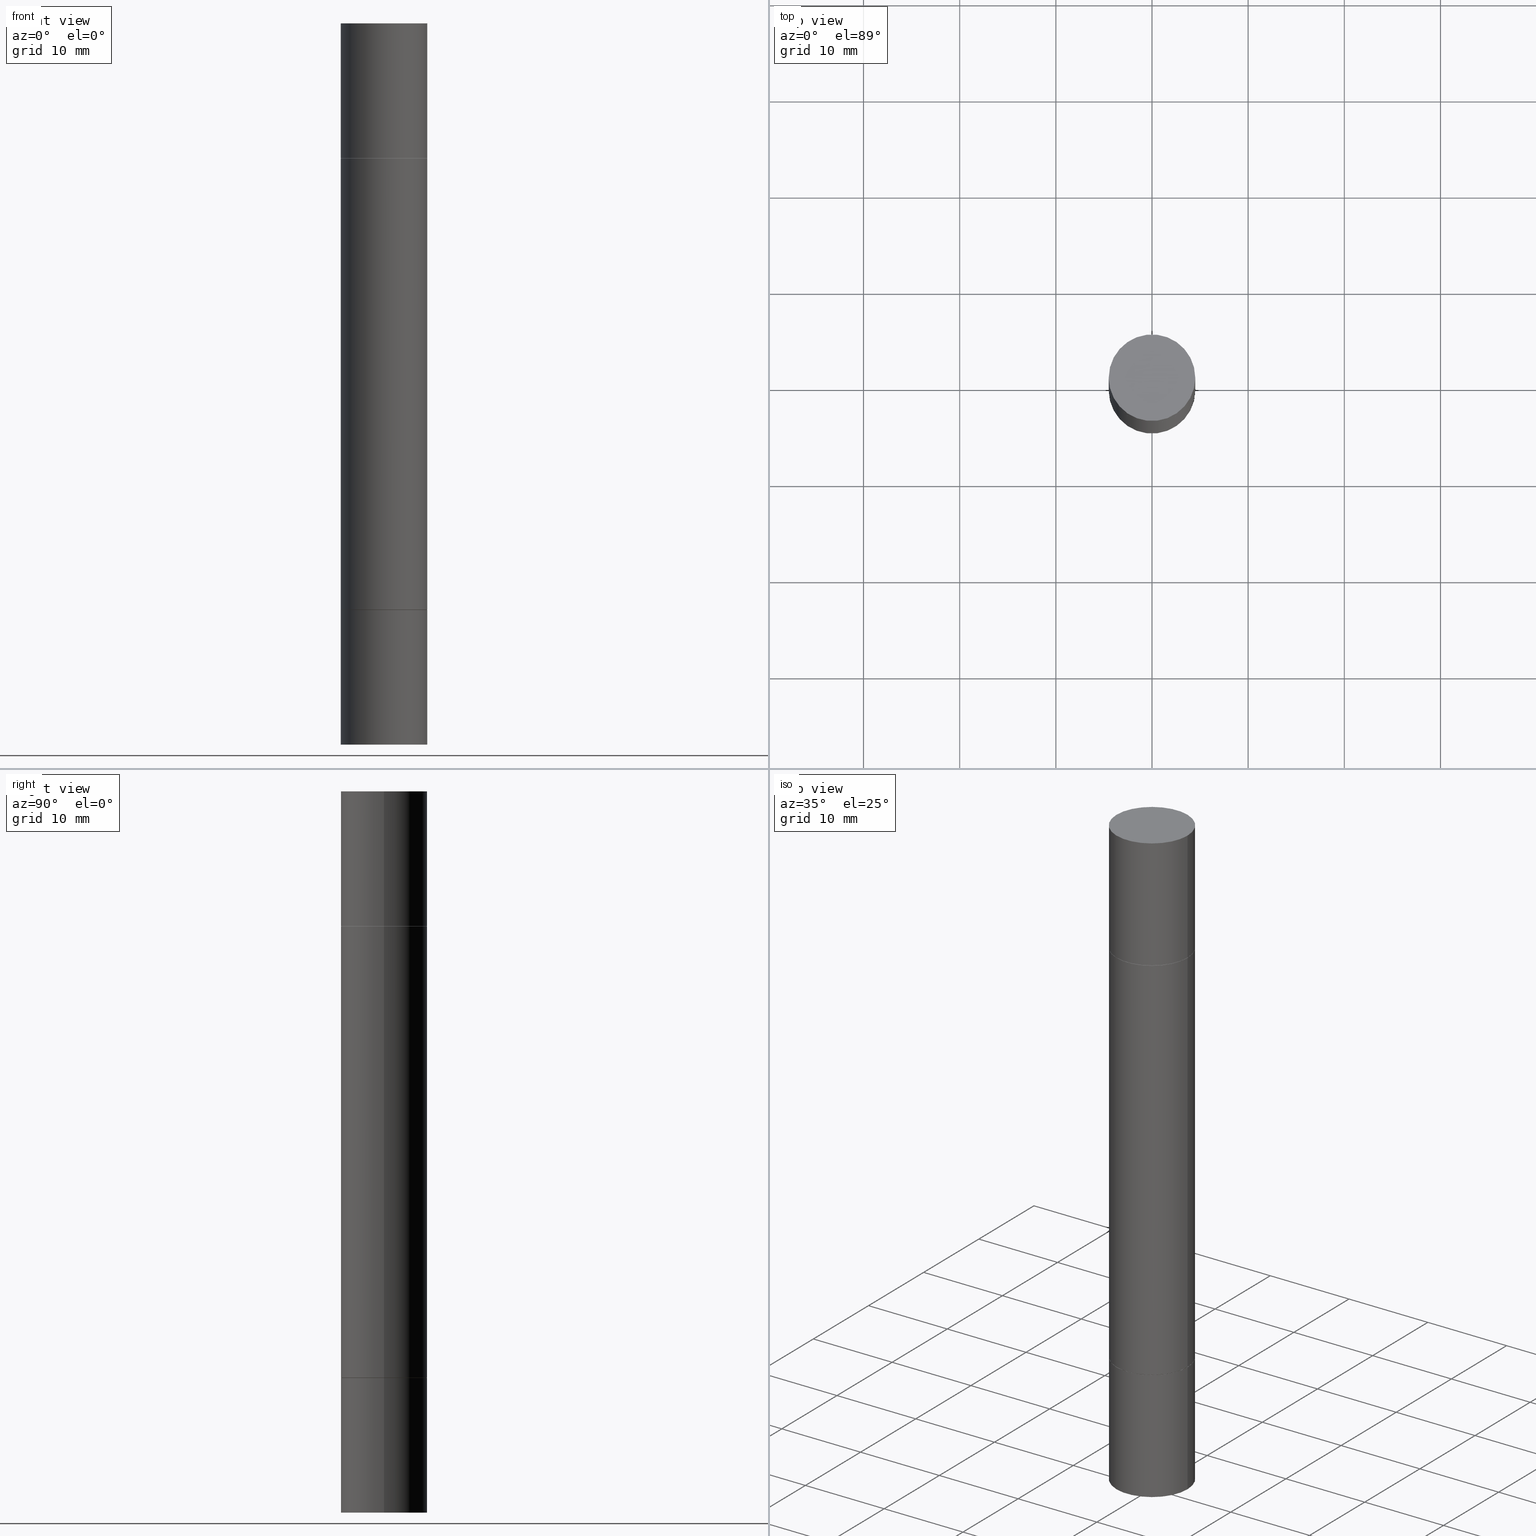
[diagram: canonical four-view strip — front | top / right | iso, engineering-drawing reading convention]
A machine part, canonical four-view strip (front | top / right | iso — engineering-drawing reading convention). The complete STEP part file that produces these views, byte-faithful:
ISO-10303-21;
HEADER;
FILE_DESCRIPTION (( 'STEP AP203' ),
    '1' );
FILE_NAME ('41453.STEP',
    '2024-03-04T15:45:10',
    ( '' ),
    ( '' ),
    'SwSTEP 2.0',
    'SolidWorks 2023',
    '' );
FILE_SCHEMA (( 'CONFIG_CONTROL_DESIGN' ));
ENDSEC;

DATA;
#1 = AXIS2_PLACEMENT_3D ( 'NONE', #207, #625, #54 ) ;
#2 = VECTOR ( 'NONE', #663, 39.37007874015748143 ) ;
#3 = CARTESIAN_POINT ( 'NONE',  ( 0.1771500000000000019, -3.163725568664010262E-15, -0.5521999999999996911 ) ) ;
#4 = ADVANCED_FACE ( 'NONE', ( #670 ), #9, .T. ) ;
#5 = PERSON_AND_ORGANIZATION ( #529, #51 ) ;
#6 = CARTESIAN_POINT ( 'NONE',  ( 0.1761500000000000010, -3.153249715574770922E-15, -0.5511999999999992461 ) ) ;
#7 = ORIENTED_EDGE ( 'NONE', *, *, #71, .F. ) ;
#8 = EDGE_CURVE ( 'NONE', #444, #341, #531, .T. ) ;
#9 = CONICAL_SURFACE ( 'NONE', #238, 0.1761500000000000010, 0.7853981633972775267 ) ;
#10 = ADVANCED_FACE ( 'NONE', ( #609 ), #214, .T. ) ;
#11 = CARTESIAN_POINT ( 'NONE',  ( -0.1771499999999998909, -2.325421169184726863E-15, -1.476399999999999491 ) ) ;
#12 = DIRECTION ( 'NONE',  ( 1.000000000000000000, -6.982962677686266711E-15, 0.000000000000000000 ) ) ;
#13 = ADVANCED_FACE ( 'NONE', ( #556 ), #627, .T. ) ;
#14 = CARTESIAN_POINT ( 'NONE',  ( 1.237031838352180770E-15, 0.1771499999999980590, -0.5512000000000003563 ) ) ;
#15 = EDGE_CURVE ( 'NONE', #341, #444, #582, .T. ) ;
#16 = ADVANCED_FACE ( 'NONE', ( #65 ), #327, .T. ) ;
#17 = AXIS2_PLACEMENT_3D ( 'NONE', #554, #494, #665 ) ;
#18 = DIRECTION ( 'NONE',  ( 1.000000000000000000, -6.982962677686267499E-15, 0.000000000000000000 ) ) ;
#19 = AXIS2_PLACEMENT_3D ( 'NONE', #90, #231, #84 ) ;
#20 = CARTESIAN_POINT ( 'NONE',  ( -0.1761500000000000010, -7.128222099976058179E-15, -2.401599999999999735 ) ) ;
#21 = ORIENTED_EDGE ( 'NONE', *, *, #302, .F. ) ;
#22 = EDGE_CURVE ( 'NONE', #414, #210, #619, .T. ) ;
#23 = APPROVAL_STATUS ( 'not_yet_approved' ) ;
#24 = DIRECTION ( 'NONE',  ( 1.000000000000000000, -6.982962677686267499E-15, 0.000000000000000000 ) ) ;
#25 = VERTEX_POINT ( 'NONE', #266 ) ;
#26 = DIRECTION ( 'NONE',  ( 0.7071067811864267805, -7.407546758113824138E-15, -0.7071067811866682540 ) ) ;
#27 = ORIENTED_EDGE ( 'NONE', *, *, #568, .T. ) ;
#28 = DIRECTION ( 'NONE',  ( 0.000000000000000000, 0.000000000000000000, 1.000000000000000000 ) ) ;
#29 = CYLINDRICAL_SURFACE ( 'NONE', #38, 0.1771499999999998909 ) ;
#30 = ORIENTED_EDGE ( 'NONE', *, *, #590, .T. ) ;
#31 = DIRECTION ( 'NONE',  ( 1.000000000000000000, -6.982962677686272233E-15, 0.000000000000000000 ) ) ;
#32 = VERTEX_POINT ( 'NONE', #11 ) ;
#33 = CARTESIAN_POINT ( 'NONE',  ( 0.000000000000000000, 0.000000000000000000, 0.000000000000000000 ) ) ;
#34 = LINE ( 'NONE', #42, #188 ) ;
#35 = EDGE_LOOP ( 'NONE', ( #251, #83, #352, #333 ) ) ;
#36 = DIRECTION ( 'NONE',  ( -2.445468806185136597E-29, 3.491481338843145583E-15, 1.000000000000000000 ) ) ;
#37 = ORIENTED_EDGE ( 'NONE', *, *, #590, .F. ) ;
#38 = AXIS2_PLACEMENT_3D ( 'NONE', #179, #94, #443 ) ;
#39 = AXIS2_PLACEMENT_3D ( 'NONE', #61, #118, #218 ) ;
#40 = SECURITY_CLASSIFICATION ( '', '', #429 ) ;
#41 = PERSON_AND_ORGANIZATION ( #529, #51 ) ;
#42 = CARTESIAN_POINT ( 'NONE',  ( -0.1761500000000000010, -7.133520554324280581E-15, -2.401599999999999735 ) ) ;
#43 = FACE_OUTER_BOUND ( 'NONE', #676, .T. ) ;
#44 = ORIENTED_EDGE ( 'NONE', *, *, #424, .F. ) ;
#45 = PERSON_AND_ORGANIZATION ( #529, #51 ) ;
#46 = DIRECTION ( 'NONE',  ( 1.000000000000000000, -6.982962677686265922E-15, 0.000000000000000000 ) ) ;
#47 = VERTEX_POINT ( 'NONE', #639 ) ;
#48 = DIRECTION ( 'NONE',  ( -2.445468806185136877E-29, -3.492890411551753071E-15, -1.000000000000000000 ) ) ;
#49 = AXIS2_PLACEMENT_3D ( 'NONE', #217, #211, #161 ) ;
#50 = CC_DESIGN_PERSON_AND_ORGANIZATION_ASSIGNMENT ( #304, #633, ( #264 ) ) ;
#51 = ORGANIZATION ( 'UNSPECIFIED', 'UNSPECIFIED', '' ) ;
#52 = ADVANCED_FACE ( 'NONE', ( #68 ), #537, .F. ) ;
#53 = ORIENTED_EDGE ( 'NONE', *, *, #358, .T. ) ;
#54 = DIRECTION ( 'NONE',  ( 1.000000000000000000, -6.982962677686266711E-15, 0.000000000000000000 ) ) ;
#55 = ORIENTED_EDGE ( 'NONE', *, *, #577, .F. ) ;
#56 = CYLINDRICAL_SURFACE ( 'NONE', #60, 0.1771499999999998909 ) ;
#57 = DIRECTION ( 'NONE',  ( 1.000000000000000000, -6.982962677686266711E-15, 0.000000000000000000 ) ) ;
#58 = EDGE_CURVE ( 'NONE', #191, #506, #203, .T. ) ;
#59 = CIRCLE ( 'NONE', #1, 0.1771500000000000019 ) ;
#60 = AXIS2_PLACEMENT_3D ( 'NONE', #310, #356, #46 ) ;
#61 = CARTESIAN_POINT ( 'NONE',  ( 0.000000000000000000, 0.000000000000000000, 0.000000000000000000 ) ) ;
#62 = ORIENTED_EDGE ( 'NONE', *, *, #269, .T. ) ;
#63 = ADVANCED_FACE ( 'NONE', ( #324 ), #70, .T. ) ;
#64 = EDGE_CURVE ( 'NONE', #506, #32, #652, .T. ) ;
#65 = FACE_OUTER_BOUND ( 'NONE', #193, .T. ) ;
#66 = EDGE_LOOP ( 'NONE', ( #518, #379 ) ) ;
#67 = AXIS2_PLACEMENT_3D ( 'NONE', #594, #423, #171 ) ;
#68 = FACE_OUTER_BOUND ( 'NONE', #541, .T. ) ;
#69 = VERTEX_POINT ( 'NONE', #489 ) ;
#70 = PLANE ( 'NONE',  #373 ) ;
#71 = EDGE_CURVE ( 'NONE', #210, #414, #123, .T. ) ;
#72 = DATE_AND_TIME ( #389, #479 ) ;
#73 = CARTESIAN_POINT ( 'NONE',  ( 5.873037884934223228E-29, -1.923200839900334937E-15, -0.5511999999999992461 ) ) ;
#74 = EDGE_CURVE ( 'NONE', #103, #80, #143, .T. ) ;
#75 = CIRCLE ( 'NONE', #460, 0.1771500000000000019 ) ;
#76 = LINE ( 'NONE', #437, #262 ) ;
#77 = PLANE ( 'NONE',  #635 ) ;
#78 = ORIENTED_EDGE ( 'NONE', *, *, #362, .F. ) ;
#79 = DIRECTION ( 'NONE',  ( 2.445468806185136597E-29, 3.492890411551752677E-15, 1.000000000000000000 ) ) ;
#80 = VERTEX_POINT ( 'NONE', #132 ) ;
#81 = COORDINATED_UNIVERSAL_TIME_OFFSET ( 5, 0, .BEHIND. ) ;
#82 = DIRECTION ( 'NONE',  ( 2.445468806185136597E-29, 3.492890411551752677E-15, 1.000000000000000000 ) ) ;
#83 = ORIENTED_EDGE ( 'NONE', *, *, #112, .T. ) ;
#84 = DIRECTION ( 'NONE',  ( 1.000000000000000000, -6.982962677686266711E-15, 0.000000000000000000 ) ) ;
#85 = ORIENTED_EDGE ( 'NONE', *, *, #376, .T. ) ;
#86 = EDGE_CURVE ( 'NONE', #135, #387, #194, .T. ) ;
#87 = DATE_TIME_ROLE ( 'creation_date' ) ;
#88 = CARTESIAN_POINT ( 'NONE',  ( -0.1771500000000000019, 2.547769778285537851E-16, 5.463695987328559963E-16 ) ) ;
#89 = VERTEX_POINT ( 'NONE', #229 ) ;
#90 = CARTESIAN_POINT ( 'NONE',  ( 5.873037884934223228E-29, -1.923200839900336120E-15, -0.5511999999999995792 ) ) ;
#91 = VERTEX_POINT ( 'NONE', #656 ) ;
#92 = EDGE_CURVE ( 'NONE', #430, #141, #380, .T. ) ;
#93 = PERSON_AND_ORGANIZATION ( #529, #51 ) ;
#94 = DIRECTION ( 'NONE',  ( -2.445468806185136597E-29, -3.492890411551752677E-15, -1.000000000000000000 ) ) ;
#95 = VECTOR ( 'NONE', #48, 39.37007874015748143 ) ;
#96 = DIRECTION ( 'NONE',  ( -2.445468806185136597E-29, -3.492890411551752677E-15, -1.000000000000000000 ) ) ;
#97 = VERTEX_POINT ( 'NONE', #507 ) ;
#98 = CIRCLE ( 'NONE', #468, 0.1771500000000000019 ) ;
#99 = CC_DESIGN_APPROVAL ( #328, ( #264 ) ) ;
#100 = APPROVAL_DATE_TIME ( #560, #328 ) ;
#101 = DIRECTION ( 'NONE',  ( 1.000000000000000000, -6.982962677686267499E-15, 0.000000000000000000 ) ) ;
#102 = DIRECTION ( 'NONE',  ( 1.000000000000000000, -6.982962677686267499E-15, 0.000000000000000000 ) ) ;
#103 = VERTEX_POINT ( 'NONE', #292 ) ;
#104 = FACE_OUTER_BOUND ( 'NONE', #618, .T. ) ;
#105 = ADVANCED_FACE ( 'NONE', ( #340 ), #550, .F. ) ;
#106 = ORIENTED_EDGE ( 'NONE', *, *, #358, .F. ) ;
#107 = CARTESIAN_POINT ( 'NONE',  ( 3.610490145451734531E-29, -5.154823048668018475E-15, -1.476399999999999491 ) ) ;
#108 = CARTESIAN_POINT ( 'NONE',  ( 5.873037884934223228E-29, -8.385141583365697263E-15, -2.401599999999999735 ) ) ;
#109 = AXIS2_PLACEMENT_3D ( 'NONE', #602, #96, #102 ) ;
#110 = ORIENTED_EDGE ( 'NONE', *, *, #64, .F. ) ;
#111 = CARTESIAN_POINT ( 'NONE',  ( 0.1771500000000000019, -1.154875829063514805E-14, -2.952799999999998981 ) ) ;
#112 = EDGE_CURVE ( 'NONE', #97, #341, #390, .T. ) ;
#113 = DIRECTION ( 'NONE',  ( 2.445468806185136597E-29, 3.492890411551752677E-15, 1.000000000000000000 ) ) ;
#114 = FACE_OUTER_BOUND ( 'NONE', #391, .T. ) ;
#115 = DIRECTION ( 'NONE',  ( 2.445468806185136597E-29, 3.492890411551752677E-15, 1.000000000000000000 ) ) ;
#116 = AXIS2_PLACEMENT_3D ( 'NONE', #73, #530, #18 ) ;
#117 = VECTOR ( 'NONE', #26, 39.37007874015748143 ) ;
#118 = DIRECTION ( 'NONE',  ( -2.445468806185136597E-29, 3.491481338843145583E-15, 1.000000000000000000 ) ) ;
#119 = DIRECTION ( 'NONE',  ( -2.445468806185136597E-29, 3.491481338843145583E-15, 1.000000000000000000 ) ) ;
#120 = CC_DESIGN_PERSON_AND_ORGANIZATION_ASSIGNMENT ( #5, #475, ( #40 ) ) ;
#121 = ADVANCED_FACE ( 'NONE', ( #330 ), #246, .T. ) ;
#122 = ORIENTED_EDGE ( 'NONE', *, *, #74, .T. ) ;
#123 = CIRCLE ( 'NONE', #466, 0.1761500000000000010 ) ;
#124 = CIRCLE ( 'NONE', #584, 0.1771500000000000019 ) ;
#125 = DIRECTION ( 'NONE',  ( 1.000000000000000000, -6.982962677686266711E-15, 0.000000000000000000 ) ) ;
#126 = EDGE_CURVE ( 'NONE', #97, #514, #321, .T. ) ;
#127 =( NAMED_UNIT ( * ) PLANE_ANGLE_UNIT ( ) SI_UNIT ( $, .RADIAN. ) );
#128 = CARTESIAN_POINT ( 'NONE',  ( 0.1761500000000000010, -3.153249715574770922E-15, -0.5511999999999992461 ) ) ;
#129 = ORIENTED_EDGE ( 'NONE', *, *, #385, .T. ) ;
#130 = CYLINDRICAL_SURFACE ( 'NONE', #449, 0.1771499999999998909 ) ;
#131 = PERSON_AND_ORGANIZATION ( #529, #51 ) ;
#132 = CARTESIAN_POINT ( 'NONE',  ( -0.1771500000000000019, -8.088667383951849417E-15, -2.401599999999999735 ) ) ;
#133 = AXIS2_PLACEMENT_3D ( 'NONE', #465, #680, #212 ) ;
#134 = ADVANCED_FACE ( 'NONE', ( #435 ), #397, .T. ) ;
#135 = VERTEX_POINT ( 'NONE', #88 ) ;
#136 = CARTESIAN_POINT ( 'NONE',  ( 0.000000000000000000, -1.031172645228302408E-14, -2.952799999999998981 ) ) ;
#137 = EDGE_LOOP ( 'NONE', ( #309, #320, #53, #21 ) ) ;
#138 = CALENDAR_DATE ( 2024, 4, 3 ) ;
#139 = DIRECTION ( 'NONE',  ( 2.445468806185136597E-29, 3.492890411551752677E-15, 1.000000000000000000 ) ) ;
#140 = DIRECTION ( 'NONE',  ( 1.000000000000000000, -6.982962677686266711E-15, 0.000000000000000000 ) ) ;
#141 = VERTEX_POINT ( 'NONE', #128 ) ;
#142 = DIRECTION ( 'NONE',  ( -2.445468806185136597E-29, 3.491481338843145583E-15, 1.000000000000000000 ) ) ;
#143 = LINE ( 'NONE', #596, #291 ) ;
#144 = PLANE ( 'NONE',  #469 ) ;
#145 = DIRECTION ( 'NONE',  ( -2.445468806185136597E-29, 3.491481338843145583E-15, 1.000000000000000000 ) ) ;
#146 = DIRECTION ( 'NONE',  ( 2.445468806185136597E-29, 3.492890411551752677E-15, 1.000000000000000000 ) ) ;
#147 = CIRCLE ( 'NONE', #176, 0.1761500000000000010 ) ;
#148 = DIRECTION ( 'NONE',  ( -1.000000000000000000, 6.982962677686265922E-15, -9.839502134516470631E-33 ) ) ;
#149 = ORIENTED_EDGE ( 'NONE', *, *, #74, .F. ) ;
#150 = CIRCLE ( 'NONE', #426, 0.1771499999999998909 ) ;
#151 = LOCAL_TIME ( 10, 45, 10.00000000000000000, #81 ) ;
#152 = PLANE ( 'NONE',  #306 ) ;
#153 = CARTESIAN_POINT ( 'NONE',  ( 0.1771500000000000019, -9.622173421717819657E-15, -2.401599999999999735 ) ) ;
#154 = ORIENTED_EDGE ( 'NONE', *, *, #269, .F. ) ;
#155 = DIRECTION ( 'NONE',  ( 1.000000000000000000, -6.982962677686267499E-15, 0.000000000000000000 ) ) ;
#156 = DIRECTION ( 'NONE',  ( -1.000000000000000000, 6.982962677686265922E-15, -4.876176775795935793E-29 ) ) ;
#157 = ORIENTED_EDGE ( 'NONE', *, *, #650, .T. ) ;
#158 = DIRECTION ( 'NONE',  ( -0.000000000000000000, -3.492185875197449130E-15, -1.000000000000000000 ) ) ;
#159 = ADVANCED_FACE ( 'NONE', ( #500 ), #29, .T. ) ;
#160 = CLOSED_SHELL ( 'NONE', ( #586, #498, #105, #433, #383, #159 ) ) ;
#161 = DIRECTION ( 'NONE',  ( 1.000000000000000000, -6.982962677686267499E-15, 0.000000000000000000 ) ) ;
#162 = DIRECTION ( 'NONE',  ( 0.7071067811864267805, -7.407546758113824138E-15, -0.7071067811866682540 ) ) ;
#163 = CARTESIAN_POINT ( 'NONE',  ( 0.1771500000000000019, -1.237031838352122197E-15, 8.638147158322499960E-30 ) ) ;
#164 = EDGE_CURVE ( 'NONE', #453, #341, #34, .T. ) ;
#165 = DATE_AND_TIME ( #587, #395 ) ;
#166 = CYLINDRICAL_SURFACE ( 'NONE', #39, 0.1771500000000000019 ) ;
#167 = CARTESIAN_POINT ( 'NONE',  ( 5.870592416128037625E-29, -1.926693730311889446E-15, -0.5521999999999996911 ) ) ;
#168 = CIRCLE ( 'NONE', #253, 0.1771500000000000019 ) ;
#169 = AXIS2_PLACEMENT_3D ( 'NONE', #275, #28, #286 ) ;
#170 = EDGE_CURVE ( 'NONE', #571, #603, #671, .T. ) ;
#171 = DIRECTION ( 'NONE',  ( -1.000000000000000000, 6.982962677686265922E-15, -9.839502134516470631E-33 ) ) ;
#172 = EDGE_LOOP ( 'NONE', ( #451, #122, #664, #37 ) ) ;
#173 = ORIENTED_EDGE ( 'NONE', *, *, #58, .T. ) ;
#174 = ORIENTED_EDGE ( 'NONE', *, *, #302, .T. ) ;
#175 = ADVANCED_FACE ( 'NONE', ( #455 ), #438, .T. ) ;
#176 = AXIS2_PLACEMENT_3D ( 'NONE', #360, #409, #621 ) ;
#177 = AXIS2_PLACEMENT_3D ( 'NONE', #413, #299, #156 ) ;
#178 = VECTOR ( 'NONE', #162, 39.37007874015748143 ) ;
#179 = CARTESIAN_POINT ( 'NONE',  ( 0.000000000000000000, -1.031172645228302408E-14, -2.952799999999998981 ) ) ;
#180 = ORIENTED_EDGE ( 'NONE', *, *, #314, .F. ) ;
#181 = CARTESIAN_POINT ( 'NONE',  ( 0.1771500000000000019, -3.160232678252458120E-15, -0.5511999999999995792 ) ) ;
#182 = ADVANCED_FACE ( 'NONE', ( #538 ), #77, .F. ) ;
#183 = COORDINATED_UNIVERSAL_TIME_OFFSET ( 5, 0, .BEHIND. ) ;
#184 = CARTESIAN_POINT ( 'NONE',  ( -0.1771500000000000019, -9.096389231977797770E-15, -2.952799999999998981 ) ) ;
#185 = ORIENTED_EDGE ( 'NONE', *, *, #15, .F. ) ;
#186 = CARTESIAN_POINT ( 'NONE',  ( 0.000000000000000000, -1.031172645228302408E-14, -2.952799999999998981 ) ) ;
#187 = CARTESIAN_POINT ( 'NONE',  ( 5.870592416128037625E-29, -8.381650102026854256E-15, -2.400599999999999401 ) ) ;
#188 = VECTOR ( 'NONE', #189, 39.37007874015748143 ) ;
#189 = DIRECTION ( 'NONE',  ( -0.7071067811864267805, 7.493145998869918709E-15, 0.7071067811866682540 ) ) ;
#190 = VECTOR ( 'NONE', #388, 39.37007874015748143 ) ;
#191 = VERTEX_POINT ( 'NONE', #3 ) ;
#192 = CARTESIAN_POINT ( 'NONE',  ( 5.873037884934223228E-29, -1.923200839900336120E-15, -0.5511999999999995792 ) ) ;
#193 = EDGE_LOOP ( 'NONE', ( #230, #235 ) ) ;
#194 = LINE ( 'NONE', #184, #487 ) ;
#195 = DIRECTION ( 'NONE',  ( -2.445468806185136877E-29, -3.492890411551753071E-15, -1.000000000000000000 ) ) ;
#196 = ORIENTED_EDGE ( 'NONE', *, *, #344, .T. ) ;
#197 = DIRECTION ( 'NONE',  ( -2.445468806185136877E-29, -3.492890411551753071E-15, -1.000000000000000000 ) ) ;
#198 = DIRECTION ( 'NONE',  ( -2.445468806185136877E-29, -3.492890411551753071E-15, -1.000000000000000000 ) ) ;
#199 = CARTESIAN_POINT ( 'NONE',  ( 0.1771500000000000019, -3.163725568664010262E-15, -0.5521999999999996911 ) ) ;
#200 = ORIENTED_EDGE ( 'NONE', *, *, #474, .F. ) ;
#201 = CC_DESIGN_PERSON_AND_ORGANIZATION_ASSIGNMENT ( #131, #544, ( #381 ) ) ;
#202 = FACE_OUTER_BOUND ( 'NONE', #490, .T. ) ;
#203 = CIRCLE ( 'NONE', #418, 0.1771500000000000019 ) ;
#204 = DIRECTION ( 'NONE',  ( -2.445468806185136597E-29, 3.491481338843145583E-15, 1.000000000000000000 ) ) ;
#205 = AXIS2_PLACEMENT_3D ( 'NONE', #524, #265, #470 ) ;
#206 = EDGE_LOOP ( 'NONE', ( #375, #563, #62, #55 ) ) ;
#207 = CARTESIAN_POINT ( 'NONE',  ( 5.873037884934223228E-29, -1.923200839900336120E-15, -0.5511999999999995792 ) ) ;
#208 = MANIFOLD_SOLID_BREP ( 'Body-Move/Copy2[1]', #447 ) ;
#209 = DIRECTION ( 'NONE',  ( -2.445468806185136877E-29, 3.491481338843145188E-15, 1.000000000000000000 ) ) ;
#210 = VERTEX_POINT ( 'NONE', #564 ) ;
#211 = DIRECTION ( 'NONE',  ( -2.445468806185136597E-29, 3.491481338843145583E-15, 1.000000000000000000 ) ) ;
#212 = DIRECTION ( 'NONE',  ( 1.000000000000000000, -6.982962677686267499E-15, 0.000000000000000000 ) ) ;
#213 = EDGE_CURVE ( 'NONE', #387, #91, #59, .T. ) ;
#214 = CONICAL_SURFACE ( 'NONE', #477, 0.1761500000000000010, 0.7853981633972775267 ) ;
#215 = AXIS2_PLACEMENT_3D ( 'NONE', #406, #436, #148 ) ;
#216 = COORDINATED_UNIVERSAL_TIME_OFFSET ( 5, 0, .BEHIND. ) ;
#217 = CARTESIAN_POINT ( 'NONE',  ( 5.873037884934223228E-29, -8.385141583365697263E-15, -2.401599999999999735 ) ) ;
#218 = DIRECTION ( 'NONE',  ( 1.000000000000000000, -6.982962677686266711E-15, 4.876176775795935793E-29 ) ) ;
#219 = EDGE_CURVE ( 'NONE', #25, #135, #75, .T. ) ;
#220 = ORIENTED_EDGE ( 'NONE', *, *, #378, .T. ) ;
#221 = AXIS2_PLACEMENT_3D ( 'NONE', #107, #260, #305 ) ;
#222 = EDGE_LOOP ( 'NONE', ( #149, #653, #30, #283 ) ) ;
#223 = FACE_OUTER_BOUND ( 'NONE', #222, .T. ) ;
#224 = DIRECTION ( 'NONE',  ( 1.000000000000000000, -6.982962677686266711E-15, 0.000000000000000000 ) ) ;
#225 = AXIS2_PLACEMENT_3D ( 'NONE', #588, #119, #224 ) ;
#226 = VECTOR ( 'NONE', #416, 39.37007874015748143 ) ;
#227 = CARTESIAN_POINT ( 'NONE',  ( -0.1771499999999998909, -9.096389231977797770E-15, -2.952799999999998981 ) ) ;
#228 = DIRECTION ( 'NONE',  ( -2.445468806185136597E-29, -3.492890411551752677E-15, -1.000000000000000000 ) ) ;
#229 = CARTESIAN_POINT ( 'NONE',  ( 0.1761500000000000010, -9.615190459040133643E-15, -2.401599999999999735 ) ) ;
#230 = ORIENTED_EDGE ( 'NONE', *, *, #219, .T. ) ;
#231 = DIRECTION ( 'NONE',  ( 2.445468806185136597E-29, 3.492890411551752677E-15, 1.000000000000000000 ) ) ;
#232 = DIRECTION ( 'NONE',  ( -2.445468806185136597E-29, 3.491481338843145583E-15, 1.000000000000000000 ) ) ;
#233 = CC_DESIGN_DATE_AND_TIME_ASSIGNMENT ( #339, #87, ( #381 ) ) ;
#234 = DIRECTION ( 'NONE',  ( -2.445468806185136877E-29, -3.492890411551753071E-15, -1.000000000000000000 ) ) ;
#235 = ORIENTED_EDGE ( 'NONE', *, *, #424, .T. ) ;
#236 = LINE ( 'NONE', #649, #117 ) ;
#237 = EDGE_LOOP ( 'NONE', ( #539, #343, #659, #288 ) ) ;
#238 = AXIS2_PLACEMENT_3D ( 'NONE', #400, #204, #410 ) ;
#239 = CARTESIAN_POINT ( 'NONE',  ( 7.220980290903470182E-29, 2.080354946989631982E-18, 5.463695987328526437E-16 ) ) ;
#240 = AXIS2_PLACEMENT_3D ( 'NONE', #623, #421, #155 ) ;
#241 = ORIENTED_EDGE ( 'NONE', *, *, #22, .T. ) ;
#242 = LOCAL_TIME ( 10, 45, 10.00000000000000000, #520 ) ;
#243 = DIRECTION ( 'NONE',  ( 1.000000000000000000, -6.982962677686272233E-15, 0.000000000000000000 ) ) ;
#244 = ORIENTED_EDGE ( 'NONE', *, *, #632, .F. ) ;
#245 = APPROVAL_ROLE ( '' ) ;
#246 = CYLINDRICAL_SURFACE ( 'NONE', #276, 0.1771499999999998909 ) ;
#247 = CARTESIAN_POINT ( 'NONE',  ( 7.220980290903470182E-29, -1.030964609733603853E-14, -2.952799999999999869 ) ) ;
#248 = EDGE_LOOP ( 'NONE', ( #154, #501, #446, #607 ) ) ;
#249 = EDGE_CURVE ( 'NONE', #603, #571, #98, .T. ) ;
#250 = CARTESIAN_POINT ( 'NONE',  ( 7.220980290903470182E-29, 2.080354946989631982E-18, 5.463695987328526437E-16 ) ) ;
#251 = ORIENTED_EDGE ( 'NONE', *, *, #126, .F. ) ;
#252 = DIRECTION ( 'NONE',  ( -2.438088387897960049E-29, 3.491481338843145188E-15, 1.000000000000000000 ) ) ;
#253 = AXIS2_PLACEMENT_3D ( 'NONE', #674, #113, #678 ) ;
#254 = VECTOR ( 'NONE', #195, 39.37007874015748143 ) ;
#255 = ORIENTED_EDGE ( 'NONE', *, *, #126, .T. ) ;
#256 = DIRECTION ( 'NONE',  ( 1.000000000000000000, -6.982962677686266711E-15, 0.000000000000000000 ) ) ;
#257 = ADVANCED_BREP_SHAPE_REPRESENTATION ( '41453', ( #208, #442, #677, #434, #668, #169 ), #268 ) ;
#258 = EDGE_LOOP ( 'NONE', ( #492, #640, #129, #624 ) ) ;
#259 = FACE_OUTER_BOUND ( 'NONE', #597, .T. ) ;
#260 = DIRECTION ( 'NONE',  ( -0.000000000000000000, -3.492185875197449130E-15, -1.000000000000000000 ) ) ;
#261 = VECTOR ( 'NONE', #234, 39.37007874015748143 ) ;
#262 = VECTOR ( 'NONE', #197, 39.37007874015748143 ) ;
#263 = CC_DESIGN_APPROVAL ( #325, ( #381 ) ) ;
#264 = PRODUCT_DEFINITION_FORMATION_WITH_SPECIFIED_SOURCE ( 'ANY', '', #480, .NOT_KNOWN. ) ;
#265 = DIRECTION ( 'NONE',  ( 2.445468806185136597E-29, 3.492890411551752677E-15, 1.000000000000000000 ) ) ;
#266 = CARTESIAN_POINT ( 'NONE',  ( 0.1771500000000000019, -1.234951483405132701E-15, 5.463695987328526437E-16 ) ) ;
#267 = AXIS2_PLACEMENT_3D ( 'NONE', #187, #232, #613 ) ;
#268 =( GEOMETRIC_REPRESENTATION_CONTEXT ( 3 ) GLOBAL_UNCERTAINTY_ASSIGNED_CONTEXT ( ( #316 ) ) GLOBAL_UNIT_ASSIGNED_CONTEXT ( ( #493, #127, #396 ) ) REPRESENTATION_CONTEXT ( 'NONE', 'WORKASPACE' ) );
#269 = EDGE_CURVE ( 'NONE', #506, #191, #168, .T. ) ;
#270 = APPROVAL_PERSON_ORGANIZATION ( #93, #325, #605 ) ;
#271 = APPROVAL_DATE_TIME ( #641, #549 ) ;
#272 = CARTESIAN_POINT ( 'NONE',  ( 5.870592416128037625E-29, -1.926693730311889446E-15, -0.5521999999999996911 ) ) ;
#273 = COORDINATED_UNIVERSAL_TIME_OFFSET ( 5, 0, .BEHIND. ) ;
#274 = DIRECTION ( 'NONE',  ( 2.438088387897960049E-29, -3.491481338843145188E-15, -1.000000000000000000 ) ) ;
#275 = CARTESIAN_POINT ( 'NONE',  ( 0.000000000000000000, 0.000000000000000000, 0.000000000000000000 ) ) ;
#276 = AXIS2_PLACEMENT_3D ( 'NONE', #386, #335, #345 ) ;
#277 = CARTESIAN_POINT ( 'NONE',  ( 5.873037884934223228E-29, -1.923200839900334937E-15, -0.5511999999999992461 ) ) ;
#278 = ORIENTED_EDGE ( 'NONE', *, *, #213, .F. ) ;
#279 = CARTESIAN_POINT ( 'NONE',  ( 7.220980290903470182E-29, -1.030964609733603853E-14, -2.952799999999999869 ) ) ;
#280 = ORIENTED_EDGE ( 'NONE', *, *, #471, .F. ) ;
#281 = CYLINDRICAL_SURFACE ( 'NONE', #461, 0.1771500000000000019 ) ;
#282 = DIRECTION ( 'NONE',  ( 1.000000000000000000, -6.982962677686266711E-15, 0.000000000000000000 ) ) ;
#283 = ORIENTED_EDGE ( 'NONE', *, *, #420, .F. ) ;
#284 = CARTESIAN_POINT ( 'NONE',  ( -0.1771500000000000019, -9.096389231977797770E-15, -2.952799999999998981 ) ) ;
#285 = ORIENTED_EDGE ( 'NONE', *, *, #71, .T. ) ;
#286 = DIRECTION ( 'NONE',  ( 1.000000000000000000, 0.000000000000000000, 0.000000000000000000 ) ) ;
#287 = DIRECTION ( 'NONE',  ( -2.445468806185136877E-29, 3.491481338843145188E-15, 1.000000000000000000 ) ) ;
#288 = ORIENTED_EDGE ( 'NONE', *, *, #522, .F. ) ;
#289 = CYLINDRICAL_SURFACE ( 'NONE', #322, 0.1771500000000000019 ) ;
#290 = ORIENTED_EDGE ( 'NONE', *, *, #525, .F. ) ;
#291 = VECTOR ( 'NONE', #287, 39.37007874015748143 ) ;
#292 = CARTESIAN_POINT ( 'NONE',  ( -0.1771500000000000019, -8.088667383951849417E-15, -2.952799999999999869 ) ) ;
#293 = EDGE_CURVE ( 'NONE', #453, #89, #334, .T. ) ;
#294 = CONICAL_SURFACE ( 'NONE', #133, 0.1761500000000000010, 0.7853981633972775267 ) ;
#295 = APPROVAL_PERSON_ORGANIZATION ( #482, #549, #312 ) ;
#296 = CARTESIAN_POINT ( 'NONE',  ( 0.000000000000000000, -1.031172645228302408E-14, -2.952799999999998981 ) ) ;
#297 = CARTESIAN_POINT ( 'NONE',  ( 5.873037884934223228E-29, -1.923200839900334937E-15, -0.5511999999999992461 ) ) ;
#298 = DIRECTION ( 'NONE',  ( 2.445468806185136597E-29, 3.492890411551752677E-15, 1.000000000000000000 ) ) ;
#299 = DIRECTION ( 'NONE',  ( 2.438088387897960049E-29, -3.491481338843145188E-15, -1.000000000000000000 ) ) ;
#300 = EDGE_LOOP ( 'NONE', ( #565, #244, #27, #336 ) ) ;
#301 = DIRECTION ( 'NONE',  ( 1.000000000000000000, -6.982962677686266711E-15, 0.000000000000000000 ) ) ;
#302 = EDGE_CURVE ( 'NONE', #571, #459, #363, .T. ) ;
#303 = ORIENTED_EDGE ( 'NONE', *, *, #293, .T. ) ;
#304 = PERSON_AND_ORGANIZATION ( #529, #51 ) ;
#305 = DIRECTION ( 'NONE',  ( 0.000000000000000000, 1.000000000000000000, -3.084220145260248196E-15 ) ) ;
#306 = AXIS2_PLACEMENT_3D ( 'NONE', #353, #252, #417 ) ;
#307 = DIRECTION ( 'NONE',  ( -2.445468806185136597E-29, 3.491481338843145583E-15, 1.000000000000000000 ) ) ;
#308 = AXIS2_PLACEMENT_3D ( 'NONE', #186, #228, #346 ) ;
#309 = ORIENTED_EDGE ( 'NONE', *, *, #249, .F. ) ;
#310 = CARTESIAN_POINT ( 'NONE',  ( 0.000000000000000000, -1.031172645228302408E-14, -2.952799999999998981 ) ) ;
#311 = CARTESIAN_POINT ( 'NONE',  ( -0.1771499999999999742, -3.939485828362789800E-15, -2.400599999999999401 ) ) ;
#312 = APPROVAL_ROLE ( '' ) ;
#313 = CARTESIAN_POINT ( 'NONE',  ( 3.610490145451734531E-29, -5.154823048668018475E-15, -1.476399999999999491 ) ) ;
#314 = EDGE_CURVE ( 'NONE', #89, #453, #147, .T. ) ;
#315 = CIRCLE ( 'NONE', #488, 0.1761500000000000010 ) ;
#316 = UNCERTAINTY_MEASURE_WITH_UNIT (LENGTH_MEASURE( 1.000000000000000082E-05 ), #493, 'distance_accuracy_value', 'NONE');
#317 = ORIENTED_EDGE ( 'NONE', *, *, #86, .F. ) ;
#318 = ORIENTED_EDGE ( 'NONE', *, *, #579, .F. ) ;
#319 = DATE_TIME_ROLE ( 'classification_date' ) ;
#320 = ORIENTED_EDGE ( 'NONE', *, *, #474, .T. ) ;
#321 = CIRCLE ( 'NONE', #448, 0.1771500000000000019 ) ;
#322 = AXIS2_PLACEMENT_3D ( 'NONE', #296, #496, #31 ) ;
#323 = ADVANCED_FACE ( 'NONE', ( #202 ), #152, .F. ) ;
#324 = FACE_OUTER_BOUND ( 'NONE', #532, .T. ) ;
#325 = APPROVAL ( #23, 'UNSPECIFIED' ) ;
#326 = PERSON_AND_ORGANIZATION ( #529, #51 ) ;
#327 = PLANE ( 'NONE',  #67 ) ;
#328 = APPROVAL ( #499, 'UNSPECIFIED' ) ;
#329 = MECHANICAL_CONTEXT ( 'NONE', #576, 'mechanical' ) ;
#330 = FACE_OUTER_BOUND ( 'NONE', #300, .T. ) ;
#331 = ORIENTED_EDGE ( 'NONE', *, *, #420, .T. ) ;
#332 = LINE ( 'NONE', #342, #2 ) ;
#333 = ORIENTED_EDGE ( 'NONE', *, *, #568, .F. ) ;
#334 = CIRCLE ( 'NONE', #49, 0.1761500000000000010 ) ;
#335 = DIRECTION ( 'NONE',  ( -2.445468806185136597E-29, -3.492890411551752677E-15, -1.000000000000000000 ) ) ;
#336 = ORIENTED_EDGE ( 'NONE', *, *, #8, .T. ) ;
#337 = DIRECTION ( 'NONE',  ( -2.445468806185136597E-29, -3.492890411551752677E-15, -1.000000000000000000 ) ) ;
#338 = ORIENTED_EDGE ( 'NONE', *, *, #344, .F. ) ;
#339 = DATE_AND_TIME ( #138, #151 ) ;
#340 = FACE_OUTER_BOUND ( 'NONE', #589, .T. ) ;
#341 = VERTEX_POINT ( 'NONE', #311 ) ;
#342 = CARTESIAN_POINT ( 'NONE',  ( 0.1761500000000000010, -9.615190459040133643E-15, -2.401599999999999735 ) ) ;
#343 = ORIENTED_EDGE ( 'NONE', *, *, #164, .T. ) ;
#344 = EDGE_CURVE ( 'NONE', #25, #91, #411, .T. ) ;
#345 = DIRECTION ( 'NONE',  ( 1.000000000000000000, -6.982962677686265922E-15, 0.000000000000000000 ) ) ;
#346 = DIRECTION ( 'NONE',  ( 1.000000000000000000, -6.982962677686272233E-15, 0.000000000000000000 ) ) ;
#347 = DIRECTION ( 'NONE',  ( 1.000000000000000000, -6.982962677686267499E-15, 0.000000000000000000 ) ) ;
#348 = AXIS2_PLACEMENT_3D ( 'NONE', #616, #350, #647 ) ;
#349 = CIRCLE ( 'NONE', #221, 0.1771499999999998909 ) ;
#350 = DIRECTION ( 'NONE',  ( -2.445468806185136597E-29, -3.492890411551752677E-15, -1.000000000000000000 ) ) ;
#351 = CARTESIAN_POINT ( 'NONE',  ( 5.873037884934223228E-29, -1.923200839900334937E-15, -0.5511999999999992461 ) ) ;
#352 = ORIENTED_EDGE ( 'NONE', *, *, #15, .T. ) ;
#353 = CARTESIAN_POINT ( 'NONE',  ( 5.873037884934223228E-29, -8.385141583365697263E-15, -2.401599999999999735 ) ) ;
#354 = ORIENTED_EDGE ( 'NONE', *, *, #58, .F. ) ;
#355 = PERSON_AND_ORGANIZATION_ROLE ( 'creator' ) ;
#356 = DIRECTION ( 'NONE',  ( -2.445468806185136597E-29, -3.492890411551752677E-15, -1.000000000000000000 ) ) ;
#357 = CARTESIAN_POINT ( 'NONE',  ( -0.1771500000000000019, 2.547769778285537851E-16, 5.463695987328559963E-16 ) ) ;
#358 = EDGE_CURVE ( 'NONE', #47, #459, #431, .T. ) ;
#359 = ORIENTED_EDGE ( 'NONE', *, *, #385, .F. ) ;
#360 = CARTESIAN_POINT ( 'NONE',  ( 5.873037884934223228E-29, -8.385141583365697263E-15, -2.401599999999999735 ) ) ;
#361 = CONICAL_SURFACE ( 'NONE', #240, 0.1761500000000000010, 0.7853981633972775267 ) ;
#362 = EDGE_CURVE ( 'NONE', #32, #398, #150, .T. ) ;
#363 = LINE ( 'NONE', #111, #95 ) ;
#364 = DIMENSIONAL_EXPONENTS ( 1.000000000000000000, 0.000000000000000000, 0.000000000000000000, 0.000000000000000000, 0.000000000000000000, 0.000000000000000000, 0.000000000000000000 ) ;
#365 = ADVANCED_FACE ( 'NONE', ( #104 ), #361, .T. ) ;
#366 = ADVANCED_FACE ( 'NONE', ( #464 ), #56, .T. ) ;
#367 = DESIGN_CONTEXT ( 'detailed design', #512, 'design' ) ;
#368 = CARTESIAN_POINT ( 'NONE',  ( -0.1771500000000000019, 2.547769778285537851E-16, -0.5511999999999995792 ) ) ;
#369 = PLANE ( 'NONE',  #177 ) ;
#370 = CALENDAR_DATE ( 2024, 4, 3 ) ;
#371 = FACE_OUTER_BOUND ( 'NONE', #172, .T. ) ;
#372 = CARTESIAN_POINT ( 'NONE',  ( 1.237031838352194377E-15, 0.1771499999999897046, -2.952800000000000313 ) ) ;
#373 = AXIS2_PLACEMENT_3D ( 'NONE', #372, #274, #402 ) ;
#374 = AXIS2_PLACEMENT_3D ( 'NONE', #279, #36, #243 ) ;
#375 = ORIENTED_EDGE ( 'NONE', *, *, #92, .F. ) ;
#376 = EDGE_CURVE ( 'NONE', #141, #430, #315, .T. ) ;
#377 = ORIENTED_EDGE ( 'NONE', *, *, #376, .F. ) ;
#378 = EDGE_CURVE ( 'NONE', #398, #32, #349, .T. ) ;
#379 = ORIENTED_EDGE ( 'NONE', *, *, #249, .T. ) ;
#380 = CIRCLE ( 'NONE', #394, 0.1761500000000000010 ) ;
#381 = PRODUCT_DEFINITION ( 'UNKNOWN', '', #264, #367 ) ;
#382 = AXIS2_PLACEMENT_3D ( 'NONE', #192, #79, #140 ) ;
#383 = ADVANCED_FACE ( 'NONE', ( #259 ), #294, .T. ) ;
#384 = DIRECTION ( 'NONE',  ( -2.445468806185136597E-29, -3.492890411551752677E-15, -1.000000000000000000 ) ) ;
#385 = EDGE_CURVE ( 'NONE', #414, #514, #629, .T. ) ;
#386 = CARTESIAN_POINT ( 'NONE',  ( 0.000000000000000000, -1.031172645228302408E-14, -2.952799999999998981 ) ) ;
#387 = VERTEX_POINT ( 'NONE', #368 ) ;
#388 = DIRECTION ( 'NONE',  ( -0.7071067811864267805, 2.381258160590016583E-15, -0.7071067811866682540 ) ) ;
#389 = CALENDAR_DATE ( 2024, 4, 3 ) ;
#390 = LINE ( 'NONE', #227, #261 ) ;
#391 = EDGE_LOOP ( 'NONE', ( #546, #331 ) ) ;
#392 = CARTESIAN_POINT ( 'NONE',  ( 0.1771500000000000019, -9.618681940378976650E-15, -2.400599999999999401 ) ) ;
#393 = ORIENTED_EDGE ( 'NONE', *, *, #213, .T. ) ;
#394 = AXIS2_PLACEMENT_3D ( 'NONE', #504, #298, #101 ) ;
#395 = LOCAL_TIME ( 10, 45, 10.00000000000000000, #273 ) ;
#396 =( NAMED_UNIT ( * ) SI_UNIT ( $, .STERADIAN. ) SOLID_ANGLE_UNIT ( ) );
#397 = CYLINDRICAL_SURFACE ( 'NONE', #17, 0.1771500000000000019 ) ;
#398 = VERTEX_POINT ( 'NONE', #580 ) ;
#399 = CARTESIAN_POINT ( 'NONE',  ( -0.1761500000000000010, -7.130403137997704067E-16, -0.5511999999999992461 ) ) ;
#400 = CARTESIAN_POINT ( 'NONE',  ( 5.873037884934223228E-29, -8.385141583365697263E-15, -2.401599999999999735 ) ) ;
#401 = APPLICATION_PROTOCOL_DEFINITION ( 'international standard', 'config_control_design', 1994, #576 ) ;
#402 = DIRECTION ( 'NONE',  ( -1.000000000000000000, 6.982962677686265922E-15, -4.876176775795935793E-29 ) ) ;
#403 = DIRECTION ( 'NONE',  ( 1.000000000000000000, -6.982962677686272233E-15, 0.000000000000000000 ) ) ;
#404 = EDGE_LOOP ( 'NONE', ( #110, #354, #157, #78 ) ) ;
#405 = DIRECTION ( 'NONE',  ( 0.000000000000000000, 3.492185875197449524E-15, 1.000000000000000000 ) ) ;
#406 = CARTESIAN_POINT ( 'NONE',  ( 1.237031838352194377E-15, 0.1771500000000000019, 0.000000000000000000 ) ) ;
#407 = CLOSED_SHELL ( 'NONE', ( #526, #534, #626, #483 ) ) ;
#408 = CIRCLE ( 'NONE', #644, 0.1771500000000000019 ) ;
#409 = DIRECTION ( 'NONE',  ( -2.445468806185136597E-29, 3.491481338843145583E-15, 1.000000000000000000 ) ) ;
#410 = DIRECTION ( 'NONE',  ( 1.000000000000000000, -6.982962677686267499E-15, 0.000000000000000000 ) ) ;
#411 = LINE ( 'NONE', #511, #557 ) ;
#412 = ADVANCED_FACE ( 'NONE', ( #371 ), #166, .T. ) ;
#413 = CARTESIAN_POINT ( 'NONE',  ( 1.237031838352180770E-15, 0.1771499999999916197, -2.401600000000000179 ) ) ;
#414 = VERTEX_POINT ( 'NONE', #6 ) ;
#415 = DIRECTION ( 'NONE',  ( -2.445468806185136877E-29, -3.492890411551753071E-15, -1.000000000000000000 ) ) ;
#416 = DIRECTION ( 'NONE',  ( -0.7071067811864267805, 2.381258160590016583E-15, -0.7071067811866682540 ) ) ;
#417 = DIRECTION ( 'NONE',  ( 1.000000000000000000, -6.982962677686265922E-15, 4.876176775795935793E-29 ) ) ;
#418 = AXIS2_PLACEMENT_3D ( 'NONE', #167, #642, #125 ) ;
#419 = AXIS2_PLACEMENT_3D ( 'NONE', #585, #527, #428 ) ;
#420 = EDGE_CURVE ( 'NONE', #80, #592, #533, .T. ) ;
#421 = DIRECTION ( 'NONE',  ( -2.445468806185136597E-29, -3.492890411551752677E-15, -1.000000000000000000 ) ) ;
#422 = CARTESIAN_POINT ( 'NONE',  ( 5.873037884934223228E-29, -8.385141583365697263E-15, -2.401599999999999735 ) ) ;
#423 = DIRECTION ( 'NONE',  ( 2.438088387897959769E-29, 3.492890411551753071E-15, 1.000000000000000000 ) ) ;
#424 = EDGE_CURVE ( 'NONE', #135, #25, #661, .T. ) ;
#425 = AXIS2_PLACEMENT_3D ( 'NONE', #14, #485, #535 ) ;
#426 = AXIS2_PLACEMENT_3D ( 'NONE', #313, #158, #521 ) ;
#427 = LOCAL_TIME ( 10, 45, 10.00000000000000000, #216 ) ;
#428 = DIRECTION ( 'NONE',  ( -1.000000000000000000, 6.982962677686265922E-15, -9.839502134516470631E-33 ) ) ;
#429 = SECURITY_CLASSIFICATION_LEVEL ( 'unclassified' ) ;
#430 = VERTEX_POINT ( 'NONE', #399 ) ;
#431 = CIRCLE ( 'NONE', #523, 0.1771500000000000019 ) ;
#432 = VECTOR ( 'NONE', #209, 39.37007874015748143 ) ;
#433 = ADVANCED_FACE ( 'NONE', ( #658 ), #144, .F. ) ;
#434 = MANIFOLD_SOLID_BREP ( 'Mirror1[4]', #407 ) ;
#435 = FACE_OUTER_BOUND ( 'NONE', #484, .T. ) ;
#436 = DIRECTION ( 'NONE',  ( 2.438088387897959769E-29, 3.492890411551753071E-15, 1.000000000000000000 ) ) ;
#437 = CARTESIAN_POINT ( 'NONE',  ( 0.1771499999999998909, -1.154875829063514490E-14, -2.952799999999998981 ) ) ;
#438 = CYLINDRICAL_SURFACE ( 'NONE', #348, 0.1771500000000000019 ) ;
#439 = ORIENTED_EDGE ( 'NONE', *, *, #92, .T. ) ;
#440 = FACE_OUTER_BOUND ( 'NONE', #137, .T. ) ;
#441 = EDGE_LOOP ( 'NONE', ( #85, #439 ) ) ;
#442 = MANIFOLD_SOLID_BREP ( 'Mirror1[1]', #160 ) ;
#443 = DIRECTION ( 'NONE',  ( 1.000000000000000000, -6.982962677686265922E-15, 0.000000000000000000 ) ) ;
#444 = VERTEX_POINT ( 'NONE', #392 ) ;
#445 = LINE ( 'NONE', #163, #432 ) ;
#446 = ORIENTED_EDGE ( 'NONE', *, *, #378, .F. ) ;
#447 = CLOSED_SHELL ( 'NONE', ( #412, #63, #601, #643 ) ) ;
#448 = AXIS2_PLACEMENT_3D ( 'NONE', #611, #82, #282 ) ;
#449 = AXIS2_PLACEMENT_3D ( 'NONE', #136, #337, #547 ) ;
#450 = DIRECTION ( 'NONE',  ( 1.000000000000000000, -6.982962677686266711E-15, 0.000000000000000000 ) ) ;
#451 = ORIENTED_EDGE ( 'NONE', *, *, #525, .T. ) ;
#452 = LINE ( 'NONE', #284, #543 ) ;
#453 = VERTEX_POINT ( 'NONE', #20 ) ;
#454 =( LENGTH_UNIT ( ) NAMED_UNIT ( * ) SI_UNIT ( $, .METRE. ) );
#455 = FACE_OUTER_BOUND ( 'NONE', #509, .T. ) ;
#456 = PLANE ( 'NONE',  #215 ) ;
#457 = ORIENTED_EDGE ( 'NONE', *, *, #471, .T. ) ;
#458 = DIRECTION ( 'NONE',  ( 2.445468806185136597E-29, 3.492890411551752677E-15, 1.000000000000000000 ) ) ;
#459 = VERTEX_POINT ( 'NONE', #181 ) ;
#460 = AXIS2_PLACEMENT_3D ( 'NONE', #516, #115, #301 ) ;
#461 = AXIS2_PLACEMENT_3D ( 'NONE', #33, #142, #595 ) ;
#462 = DIRECTION ( 'NONE',  ( 2.445468806185136597E-29, 3.492890411551752677E-15, 1.000000000000000000 ) ) ;
#463 = ORIENTED_EDGE ( 'NONE', *, *, #569, .T. ) ;
#464 = FACE_OUTER_BOUND ( 'NONE', #35, .T. ) ;
#465 = CARTESIAN_POINT ( 'NONE',  ( 5.873037884934223228E-29, -1.923200839900334937E-15, -0.5511999999999992461 ) ) ;
#466 = AXIS2_PLACEMENT_3D ( 'NONE', #606, #139, #24 ) ;
#467 = CARTESIAN_POINT ( 'NONE',  ( 0.1761500000000000010, -3.153249715574770922E-15, -0.5511999999999992461 ) ) ;
#468 = AXIS2_PLACEMENT_3D ( 'NONE', #250, #458, #57 ) ;
#469 = AXIS2_PLACEMENT_3D ( 'NONE', #351, #654, #612 ) ;
#470 = DIRECTION ( 'NONE',  ( 1.000000000000000000, -6.982962677686266711E-15, 0.000000000000000000 ) ) ;
#471 = EDGE_CURVE ( 'NONE', #459, #47, #628, .T. ) ;
#472 = ORIENTED_EDGE ( 'NONE', *, *, #522, .T. ) ;
#473 = CC_DESIGN_PERSON_AND_ORGANIZATION_ASSIGNMENT ( #45, #355, ( #264 ) ) ;
#474 = EDGE_CURVE ( 'NONE', #603, #47, #452, .T. ) ;
#475 = PERSON_AND_ORGANIZATION_ROLE ( 'classification_officer' ) ;
#476 = PRODUCT_RELATED_PRODUCT_CATEGORY ( 'detail', '', ( #480 ) ) ;
#477 = AXIS2_PLACEMENT_3D ( 'NONE', #553, #145, #347 ) ;
#478 = CIRCLE ( 'NONE', #382, 0.1771500000000000019 ) ;
#479 = LOCAL_TIME ( 10, 45, 10.00000000000000000, #183 ) ;
#480 = PRODUCT ( '41453', '41453', '', ( #329 ) ) ;
#481 = DIRECTION ( 'NONE',  ( 2.445468806185136597E-29, 3.492890411551752677E-15, 1.000000000000000000 ) ) ;
#482 = PERSON_AND_ORGANIZATION ( #529, #51 ) ;
#483 = ADVANCED_FACE ( 'NONE', ( #43 ), #608, .T. ) ;
#484 = EDGE_LOOP ( 'NONE', ( #317, #600, #196, #463 ) ) ;
#485 = DIRECTION ( 'NONE',  ( 2.438088387897959769E-29, 3.492890411551753071E-15, 1.000000000000000000 ) ) ;
#486 = LINE ( 'NONE', #491, #254 ) ;
#487 = VECTOR ( 'NONE', #599, 39.37007874015748143 ) ;
#488 = AXIS2_PLACEMENT_3D ( 'NONE', #566, #631, #519 ) ;
#489 = CARTESIAN_POINT ( 'NONE',  ( 0.1771500000000000019, -1.154667793568816250E-14, -2.952799999999999869 ) ) ;
#490 = EDGE_LOOP ( 'NONE', ( #180, #648 ) ) ;
#491 = CARTESIAN_POINT ( 'NONE',  ( 0.1771499999999998909, -1.154875829063514490E-14, -2.952799999999998981 ) ) ;
#492 = ORIENTED_EDGE ( 'NONE', *, *, #614, .F. ) ;
#493 =( CONVERSION_BASED_UNIT ( 'INCH', #536 ) LENGTH_UNIT ( ) NAMED_UNIT ( #364 ) );
#494 = DIRECTION ( 'NONE',  ( -2.445468806185136597E-29, -3.492890411551752677E-15, -1.000000000000000000 ) ) ;
#495 = ORIENTED_EDGE ( 'NONE', *, *, #577, .T. ) ;
#496 = DIRECTION ( 'NONE',  ( -2.445468806185136597E-29, -3.492890411551752677E-15, -1.000000000000000000 ) ) ;
#497 = EDGE_LOOP ( 'NONE', ( #667, #303, #472, #185 ) ) ;
#498 = ADVANCED_FACE ( 'NONE', ( #666 ), #636, .T. ) ;
#499 = APPROVAL_STATUS ( 'not_yet_approved' ) ;
#500 = FACE_OUTER_BOUND ( 'NONE', #404, .T. ) ;
#501 = ORIENTED_EDGE ( 'NONE', *, *, #64, .T. ) ;
#502 = CARTESIAN_POINT ( 'NONE',  ( 0.1771500000000000019, -1.234951483405132701E-15, 5.463695987328526437E-16 ) ) ;
#503 = APPROVAL_DATE_TIME ( #72, #325 ) ;
#504 = CARTESIAN_POINT ( 'NONE',  ( 5.873037884934223228E-29, -1.923200839900334937E-15, -0.5511999999999992461 ) ) ;
#505 = FACE_OUTER_BOUND ( 'NONE', #66, .T. ) ;
#506 = VERTEX_POINT ( 'NONE', #555 ) ;
#507 = CARTESIAN_POINT ( 'NONE',  ( -0.1771500000000000019, -7.113565100066610661E-16, -0.5521999999999996911 ) ) ;
#508 = CARTESIAN_POINT ( 'NONE',  ( -0.1761500000000000010, -7.147241175928796487E-16, -0.5511999999999992461 ) ) ;
#509 = EDGE_LOOP ( 'NONE', ( #44, #655, #393, #338 ) ) ;
#510 = CALENDAR_DATE ( 2024, 4, 3 ) ;
#511 = CARTESIAN_POINT ( 'NONE',  ( 0.1771500000000000019, -1.154875829063514805E-14, -2.952799999999998981 ) ) ;
#512 = APPLICATION_CONTEXT ( 'configuration controlled 3d designs of mechanical parts and assemblies' ) ;
#513 = VECTOR ( 'NONE', #198, 39.37007874015748143 ) ;
#514 = VERTEX_POINT ( 'NONE', #199 ) ;
#515 = AXIS2_PLACEMENT_3D ( 'NONE', #422, #634, #583 ) ;
#516 = CARTESIAN_POINT ( 'NONE',  ( 7.220980290903470182E-29, 2.080354946989631982E-18, 5.463695987328526437E-16 ) ) ;
#517 = FACE_OUTER_BOUND ( 'NONE', #622, .T. ) ;
#518 = ORIENTED_EDGE ( 'NONE', *, *, #170, .T. ) ;
#519 = DIRECTION ( 'NONE',  ( 1.000000000000000000, -6.982962677686267499E-15, 0.000000000000000000 ) ) ;
#520 = COORDINATED_UNIVERSAL_TIME_OFFSET ( 5, 0, .BEHIND. ) ;
#521 = DIRECTION ( 'NONE',  ( 0.000000000000000000, 1.000000000000000000, -3.084220145260248196E-15 ) ) ;
#522 = EDGE_CURVE ( 'NONE', #89, #444, #332, .T. ) ;
#523 = AXIS2_PLACEMENT_3D ( 'NONE', #573, #462, #256 ) ;
#524 = CARTESIAN_POINT ( 'NONE',  ( 7.220980290903470182E-29, 2.080354946989631982E-18, 5.463695987328526437E-16 ) ) ;
#525 = EDGE_CURVE ( 'NONE', #69, #103, #408, .T. ) ;
#526 = ADVANCED_FACE ( 'NONE', ( #440 ), #289, .T. ) ;
#527 = DIRECTION ( 'NONE',  ( 2.438088387897959769E-29, 3.492890411551753071E-15, 1.000000000000000000 ) ) ;
#528 = DIRECTION ( 'NONE',  ( 1.000000000000000000, -6.982962677686267499E-15, 0.000000000000000000 ) ) ;
#529 = PERSON ( 'UNSPECIFIED', 'UNSPECIFIED', 'UNSPECIFIED', ('UNSPECIFIED'), ('UNSPECIFIED'), ('UNSPECIFIED') ) ;
#530 = DIRECTION ( 'NONE',  ( 2.445468806185136597E-29, 3.492890411551752677E-15, 1.000000000000000000 ) ) ;
#531 = CIRCLE ( 'NONE', #267, 0.1771500000000000019 ) ;
#532 = EDGE_LOOP ( 'NONE', ( #290, #318 ) ) ;
#533 = CIRCLE ( 'NONE', #515, 0.1771500000000000019 ) ;
#534 = ADVANCED_FACE ( 'NONE', ( #505 ), #456, .T. ) ;
#535 = DIRECTION ( 'NONE',  ( -1.000000000000000000, 6.982962677686265922E-15, -9.839502134516470631E-33 ) ) ;
#536 = LENGTH_MEASURE_WITH_UNIT ( LENGTH_MEASURE( 0.02539999999999999897 ), #454 );
#537 = PLANE ( 'NONE',  #425 ) ;
#538 = FACE_OUTER_BOUND ( 'NONE', #673, .T. ) ;
#539 = ORIENTED_EDGE ( 'NONE', *, *, #314, .T. ) ;
#540 = LINE ( 'NONE', #562, #190 ) ;
#541 = EDGE_LOOP ( 'NONE', ( #548, #278 ) ) ;
#542 = AXIS2_PLACEMENT_3D ( 'NONE', #662, #405, #545 ) ;
#543 = VECTOR ( 'NONE', #617, 39.37007874015748143 ) ;
#544 = PERSON_AND_ORGANIZATION_ROLE ( 'creator' ) ;
#545 = DIRECTION ( 'NONE',  ( 0.000000000000000000, 1.000000000000000000, -3.492185875197449524E-15 ) ) ;
#546 = ORIENTED_EDGE ( 'NONE', *, *, #615, .T. ) ;
#547 = DIRECTION ( 'NONE',  ( 1.000000000000000000, -6.982962677686265922E-15, 0.000000000000000000 ) ) ;
#548 = ORIENTED_EDGE ( 'NONE', *, *, #569, .F. ) ;
#549 = APPROVAL ( #638, 'UNSPECIFIED' ) ;
#550 = PLANE ( 'NONE',  #542 ) ;
#551 = ORIENTED_EDGE ( 'NONE', *, *, #614, .T. ) ;
#552 = DIRECTION ( 'NONE',  ( -2.445468806185136597E-29, 3.491481338843145583E-15, 1.000000000000000000 ) ) ;
#553 = CARTESIAN_POINT ( 'NONE',  ( 5.873037884934223228E-29, -8.385141583365697263E-15, -2.401599999999999735 ) ) ;
#554 = CARTESIAN_POINT ( 'NONE',  ( 0.000000000000000000, -1.031172645228302408E-14, -2.952799999999998981 ) ) ;
#555 = CARTESIAN_POINT ( 'NONE',  ( -0.1771500000000000019, -7.113565100066610661E-16, -0.5521999999999996911 ) ) ;
#556 = FACE_OUTER_BOUND ( 'NONE', #258, .T. ) ;
#557 = VECTOR ( 'NONE', #415, 39.37007874015748143 ) ;
#558 = AXIS2_PLACEMENT_3D ( 'NONE', #108, #307, #575 ) ;
#559 = EDGE_CURVE ( 'NONE', #430, #506, #540, .T. ) ;
#560 = DATE_AND_TIME ( #510, #242 ) ;
#561 = CARTESIAN_POINT ( 'NONE',  ( -0.1771499999999998909, -9.096389231977797770E-15, -2.952799999999998981 ) ) ;
#562 = CARTESIAN_POINT ( 'NONE',  ( -0.1761500000000000010, -7.147241175928796487E-16, -0.5511999999999992461 ) ) ;
#563 = ORIENTED_EDGE ( 'NONE', *, *, #559, .T. ) ;
#564 = CARTESIAN_POINT ( 'NONE',  ( -0.1761500000000000010, -7.130403137997704067E-16, -0.5511999999999992461 ) ) ;
#565 = ORIENTED_EDGE ( 'NONE', *, *, #112, .F. ) ;
#566 = CARTESIAN_POINT ( 'NONE',  ( 5.873037884934223228E-29, -1.923200839900334937E-15, -0.5511999999999992461 ) ) ;
#567 = LINE ( 'NONE', #508, #226 ) ;
#568 = EDGE_CURVE ( 'NONE', #514, #444, #486, .T. ) ;
#569 = EDGE_CURVE ( 'NONE', #91, #387, #478, .T. ) ;
#570 = CLOSED_SHELL ( 'NONE', ( #175, #16, #52, #134 ) ) ;
#571 = VERTEX_POINT ( 'NONE', #502 ) ;
#572 = CIRCLE ( 'NONE', #374, 0.1771500000000000019 ) ;
#573 = CARTESIAN_POINT ( 'NONE',  ( 5.873037884934223228E-29, -1.923200839900336120E-15, -0.5511999999999995792 ) ) ;
#574 = CC_DESIGN_APPROVAL ( #549, ( #40 ) ) ;
#575 = DIRECTION ( 'NONE',  ( 1.000000000000000000, -6.982962677686266711E-15, 0.000000000000000000 ) ) ;
#576 = APPLICATION_CONTEXT ( 'configuration controlled 3d designs of mechanical parts and assemblies' ) ;
#577 = EDGE_CURVE ( 'NONE', #141, #191, #236, .T. ) ;
#578 = DIRECTION ( 'NONE',  ( 1.000000000000000000, -6.982962677686265922E-15, 9.839502134516470631E-33 ) ) ;
#579 = EDGE_CURVE ( 'NONE', #103, #69, #572, .T. ) ;
#580 = CARTESIAN_POINT ( 'NONE',  ( 0.1771499999999998909, -4.777790227842073988E-15, -1.476399999999999491 ) ) ;
#581 = SHAPE_DEFINITION_REPRESENTATION ( #593, #257 ) ;
#582 = CIRCLE ( 'NONE', #225, 0.1771500000000000019 ) ;
#583 = DIRECTION ( 'NONE',  ( 1.000000000000000000, -6.982962677686266711E-15, 0.000000000000000000 ) ) ;
#584 = AXIS2_PLACEMENT_3D ( 'NONE', #272, #481, #12 ) ;
#585 = CARTESIAN_POINT ( 'NONE',  ( 1.237031838352180770E-15, 0.1771499999999980590, -0.5512000000000003563 ) ) ;
#586 = ADVANCED_FACE ( 'NONE', ( #598 ), #130, .T. ) ;
#587 = CALENDAR_DATE ( 2024, 4, 3 ) ;
#588 = CARTESIAN_POINT ( 'NONE',  ( 5.870592416128037625E-29, -8.381650102026854256E-15, -2.400599999999999401 ) ) ;
#589 = EDGE_LOOP ( 'NONE', ( #220, #637 ) ) ;
#590 = EDGE_CURVE ( 'NONE', #69, #592, #445, .T. ) ;
#591 = AXIS2_PLACEMENT_3D ( 'NONE', #297, #384, #528 ) ;
#592 = VERTEX_POINT ( 'NONE', #153 ) ;
#593 = PRODUCT_DEFINITION_SHAPE ( 'NONE', 'NONE',  #381 ) ;
#594 = CARTESIAN_POINT ( 'NONE',  ( 1.237031838352194377E-15, 0.1771500000000000019, 0.000000000000000000 ) ) ;
#595 = DIRECTION ( 'NONE',  ( 1.000000000000000000, -6.982962677686266711E-15, 4.876176775795935793E-29 ) ) ;
#596 = CARTESIAN_POINT ( 'NONE',  ( -0.1771500000000000019, 1.258726456399017493E-15, -8.713893512386565325E-30 ) ) ;
#597 = EDGE_LOOP ( 'NONE', ( #657, #377, #495, #173 ) ) ;
#598 = FACE_OUTER_BOUND ( 'NONE', #248, .T. ) ;
#599 = DIRECTION ( 'NONE',  ( -2.445468806185136877E-29, -3.492890411551753071E-15, -1.000000000000000000 ) ) ;
#600 = ORIENTED_EDGE ( 'NONE', *, *, #219, .F. ) ;
#601 = ADVANCED_FACE ( 'NONE', ( #114 ), #369, .F. ) ;
#602 = CARTESIAN_POINT ( 'NONE',  ( 5.873037884934223228E-29, -1.923200839900334937E-15, -0.5511999999999992461 ) ) ;
#603 = VERTEX_POINT ( 'NONE', #357 ) ;
#604 = AXIS2_PLACEMENT_3D ( 'NONE', #239, #146, #450 ) ;
#605 = APPROVAL_ROLE ( '' ) ;
#606 = CARTESIAN_POINT ( 'NONE',  ( 5.873037884934223228E-29, -1.923200839900334937E-15, -0.5511999999999992461 ) ) ;
#607 = ORIENTED_EDGE ( 'NONE', *, *, #650, .F. ) ;
#608 = CYLINDRICAL_SURFACE ( 'NONE', #308, 0.1771500000000000019 ) ;
#609 = FACE_OUTER_BOUND ( 'NONE', #237, .T. ) ;
#610 = PERSON_AND_ORGANIZATION_ROLE ( 'design_owner' ) ;
#611 = CARTESIAN_POINT ( 'NONE',  ( 5.870592416128037625E-29, -1.926693730311889446E-15, -0.5521999999999996911 ) ) ;
#612 = DIRECTION ( 'NONE',  ( 1.000000000000000000, -6.982962677686265922E-15, 9.839502134516470631E-33 ) ) ;
#613 = DIRECTION ( 'NONE',  ( 1.000000000000000000, -6.982962677686266711E-15, 0.000000000000000000 ) ) ;
#614 = EDGE_CURVE ( 'NONE', #210, #97, #567, .T. ) ;
#615 = EDGE_CURVE ( 'NONE', #592, #80, #620, .T. ) ;
#616 = CARTESIAN_POINT ( 'NONE',  ( 0.000000000000000000, -1.031172645228302408E-14, -2.952799999999998981 ) ) ;
#617 = DIRECTION ( 'NONE',  ( -2.445468806185136877E-29, -3.492890411551753071E-15, -1.000000000000000000 ) ) ;
#618 = EDGE_LOOP ( 'NONE', ( #7, #551, #255, #359 ) ) ;
#619 = CIRCLE ( 'NONE', #116, 0.1761500000000000010 ) ;
#620 = CIRCLE ( 'NONE', #558, 0.1771500000000000019 ) ;
#621 = DIRECTION ( 'NONE',  ( 1.000000000000000000, -6.982962677686267499E-15, 0.000000000000000000 ) ) ;
#622 = EDGE_LOOP ( 'NONE', ( #280, #106 ) ) ;
#623 = CARTESIAN_POINT ( 'NONE',  ( 5.873037884934223228E-29, -1.923200839900334937E-15, -0.5511999999999992461 ) ) ;
#624 = ORIENTED_EDGE ( 'NONE', *, *, #632, .T. ) ;
#625 = DIRECTION ( 'NONE',  ( 2.445468806185136597E-29, 3.492890411551752677E-15, 1.000000000000000000 ) ) ;
#626 = ADVANCED_FACE ( 'NONE', ( #517 ), #679, .F. ) ;
#627 = CONICAL_SURFACE ( 'NONE', #591, 0.1761500000000000010, 0.7853981633972775267 ) ;
#628 = CIRCLE ( 'NONE', #19, 0.1771500000000000019 ) ;
#629 = LINE ( 'NONE', #467, #178 ) ;
#630 = CC_DESIGN_PERSON_AND_ORGANIZATION_ASSIGNMENT ( #326, #610, ( #480 ) ) ;
#631 = DIRECTION ( 'NONE',  ( 2.445468806185136597E-29, 3.492890411551752677E-15, 1.000000000000000000 ) ) ;
#632 = EDGE_CURVE ( 'NONE', #514, #97, #124, .T. ) ;
#633 = PERSON_AND_ORGANIZATION_ROLE ( 'design_supplier' ) ;
#634 = DIRECTION ( 'NONE',  ( -2.445468806185136597E-29, 3.491481338843145583E-15, 1.000000000000000000 ) ) ;
#635 = AXIS2_PLACEMENT_3D ( 'NONE', #277, #669, #578 ) ;
#636 = CONICAL_SURFACE ( 'NONE', #109, 0.1761500000000000010, 0.7853981633972775267 ) ;
#637 = ORIENTED_EDGE ( 'NONE', *, *, #362, .T. ) ;
#638 = APPROVAL_STATUS ( 'not_yet_approved' ) ;
#639 = CARTESIAN_POINT ( 'NONE',  ( -0.1771500000000000019, 2.547769778285537851E-16, -0.5511999999999995792 ) ) ;
#640 = ORIENTED_EDGE ( 'NONE', *, *, #22, .F. ) ;
#641 = DATE_AND_TIME ( #370, #427 ) ;
#642 = DIRECTION ( 'NONE',  ( 2.445468806185136597E-29, 3.492890411551752677E-15, 1.000000000000000000 ) ) ;
#643 = ADVANCED_FACE ( 'NONE', ( #223 ), #281, .T. ) ;
#644 = AXIS2_PLACEMENT_3D ( 'NONE', #247, #552, #403 ) ;
#645 = ORIENTED_EDGE ( 'NONE', *, *, #170, .F. ) ;
#646 = CC_DESIGN_SECURITY_CLASSIFICATION ( #40, ( #264 ) ) ;
#647 = DIRECTION ( 'NONE',  ( 1.000000000000000000, -6.982962677686272233E-15, 0.000000000000000000 ) ) ;
#648 = ORIENTED_EDGE ( 'NONE', *, *, #293, .F. ) ;
#649 = CARTESIAN_POINT ( 'NONE',  ( 0.1761500000000000010, -3.153249715574770922E-15, -0.5511999999999992461 ) ) ;
#650 = EDGE_CURVE ( 'NONE', #191, #398, #76, .T. ) ;
#651 = APPLICATION_PROTOCOL_DEFINITION ( 'international standard', 'config_control_design', 1994, #512 ) ;
#652 = LINE ( 'NONE', #561, #513 ) ;
#653 = ORIENTED_EDGE ( 'NONE', *, *, #579, .T. ) ;
#654 = DIRECTION ( 'NONE',  ( -2.438088387897959769E-29, -3.492890411551753071E-15, -1.000000000000000000 ) ) ;
#655 = ORIENTED_EDGE ( 'NONE', *, *, #86, .T. ) ;
#656 = CARTESIAN_POINT ( 'NONE',  ( 0.1771500000000000019, -3.160232678252458120E-15, -0.5511999999999995792 ) ) ;
#657 = ORIENTED_EDGE ( 'NONE', *, *, #559, .F. ) ;
#658 = FACE_OUTER_BOUND ( 'NONE', #441, .T. ) ;
#659 = ORIENTED_EDGE ( 'NONE', *, *, #8, .F. ) ;
#660 = CLOSED_SHELL ( 'NONE', ( #10, #366, #365, #182, #13, #121, #4, #323 ) ) ;
#661 = CIRCLE ( 'NONE', #205, 0.1771500000000000019 ) ;
#662 = CARTESIAN_POINT ( 'NONE',  ( 0.000000000000000000, 0.000000000000000000, -1.476399999999999491 ) ) ;
#663 = DIRECTION ( 'NONE',  ( 0.7071067811864267805, -2.468850131080992517E-15, 0.7071067811866682540 ) ) ;
#664 = ORIENTED_EDGE ( 'NONE', *, *, #615, .F. ) ;
#665 = DIRECTION ( 'NONE',  ( 1.000000000000000000, -6.982962677686272233E-15, 0.000000000000000000 ) ) ;
#666 = FACE_OUTER_BOUND ( 'NONE', #206, .T. ) ;
#667 = ORIENTED_EDGE ( 'NONE', *, *, #164, .F. ) ;
#668 = MANIFOLD_SOLID_BREP ( 'Combine1', #660 ) ;
#669 = DIRECTION ( 'NONE',  ( -2.438088387897959769E-29, -3.492890411551753071E-15, -1.000000000000000000 ) ) ;
#670 = FACE_OUTER_BOUND ( 'NONE', #497, .T. ) ;
#671 = CIRCLE ( 'NONE', #604, 0.1771500000000000019 ) ;
#672 = APPROVAL_PERSON_ORGANIZATION ( #41, #328, #245 ) ;
#673 = EDGE_LOOP ( 'NONE', ( #241, #285 ) ) ;
#674 = CARTESIAN_POINT ( 'NONE',  ( 5.870592416128037625E-29, -1.926693730311889446E-15, -0.5521999999999996911 ) ) ;
#675 = CC_DESIGN_DATE_AND_TIME_ASSIGNMENT ( #165, #319, ( #40 ) ) ;
#676 = EDGE_LOOP ( 'NONE', ( #200, #645, #174, #457 ) ) ;
#677 = MANIFOLD_SOLID_BREP ( 'Mirror1[3]', #570 ) ;
#678 = DIRECTION ( 'NONE',  ( 1.000000000000000000, -6.982962677686266711E-15, 0.000000000000000000 ) ) ;
#679 = PLANE ( 'NONE',  #419 ) ;
#680 = DIRECTION ( 'NONE',  ( -2.445468806185136597E-29, -3.492890411551752677E-15, -1.000000000000000000 ) ) ;
ENDSEC;
END-ISO-10303-21;
